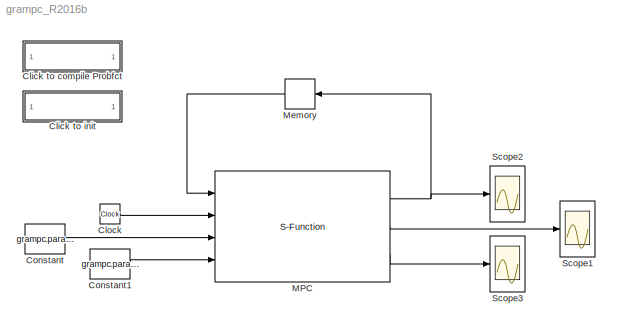
MODEL grampc_R2016b
KIND model
BLOCK [SubSystem] Click to compile Probfct
  OpenFcn = cd(fileparts(which(gcs)))\nmake probfct.c
  Ports = []
  RequestExecContextInheritance = off
  SID = 23
BLOCK [SubSystem] Click to init
  OpenFcn = cd(fileparts(which(gcs)))\n[grampc,Tsim] = initData;
  Ports = []
  RequestExecContextInheritance = off
  SID = 24
BLOCK [Clock] Clock
  SID = 22
BLOCK [Constant] Constant
  SID = 3
  Value = grampc.param.xdes
BLOCK [Constant] Constant1
  SID = 12
  Value = grampc.param.udes
BLOCK [S-Function] MPC
  EnableBusSupport = off
  FunctionName = grampc_run_Sfct
  Parameters = grampc
  Ports = [4, 3]
  SFcnIsStateOwnerBlock = off
  SFunctionDeploymentMode = off
  SID = 2
BLOCK [Memory] Memory
  InitialCondition = grampc.param.xk
  SID = 13
BLOCK [Scope] Scope1
  Floating = off
  NumInputPorts = 1
  Ports = [1]
  SID = 19
  ScopeSpecificationString = C++SS(StrPVP('Location','[1289, 56, 2553, 1391]'),StrPVP('Open','off'),MxPVP('AxesTitles',54,'struct(''axes1'',''%<SignalLabel>'')'),MxPVP('ScopeGraphics',57,'struct(''FigureColor'',''[0.5 0.5 0.5]'',''AxesColor'',''[0 0 0]'',''AxesTickColor'',''[1 1 1]'',''LineColors'',''[1 1 0;1 0 1;0 1 1;1 0 0;0 1 0;0 0 1]'',''LineStyles'',''-|-|-|-|-|-'',''LineWidths'',''[0.5 0.5 0.5 0.5 0.5 0.5]'',''MarkerSty...<+242ch>
BLOCK [Scope] Scope2
  Floating = off
  NumInputPorts = 1
  Ports = [1]
  SID = 18
  ScopeSpecificationString = C++SS(StrPVP('Location','[1289, 56, 2553, 1391]'),StrPVP('Open','off'),MxPVP('AxesTitles',54,'struct(''axes1'',''%<SignalLabel>'')'),MxPVP('ScopeGraphics',57,'struct(''FigureColor'',''[0.5 0.5 0.5]'',''AxesColor'',''[0 0 0]'',''AxesTickColor'',''[1 1 1]'',''LineColors'',''[1 1 0;1 0 1;0 1 1;1 0 0;0 1 0;0 0 1]'',''LineStyles'',''-|-|-|-|-|-'',''LineWidths'',''[0.5 0.5 0.5 0.5 0.5 0.5]'',''MarkerSty...<+274ch>
BLOCK [Scope] Scope3
  Floating = off
  NumInputPorts = 1
  Ports = [1]
  SID = 20
  ScopeSpecificationString = C++SS(StrPVP('Location','[-6, 54, 2554, 1405]'),StrPVP('Open','off'),MxPVP('AxesTitles',54,'struct(''axes1'',''%<SignalLabel>'')'),MxPVP('ScopeGraphics',57,'struct(''FigureColor'',''[0.5 0.5 0.5]'',''AxesColor'',''[0 0 0]'',''AxesTickColor'',''[1 1 1]'',''LineColors'',''[1 1 0;1 0 1;0 1 1;1 0 0;0 1 0;0 0 1]'',''LineStyles'',''-|-|-|-|-|-'',''LineWidths'',''[0.5 0.5 0.5 0.5 0.5 0.5]'',''MarkerStyle...<+272ch>
LINE Clock:1 -> MPC:2
LINE Constant1:1 -> MPC:4
LINE Constant:1 -> MPC:3
NET MPC:1 -> Memory:1, Scope2:1
LINE MPC:2 -> Scope1:1
LINE MPC:3 -> Scope3:1
LINE Memory:1 -> MPC:1
note: NET lines group one-source signal fan-out (src -> all destinations, sorted); 1:1 wires keep LINE
